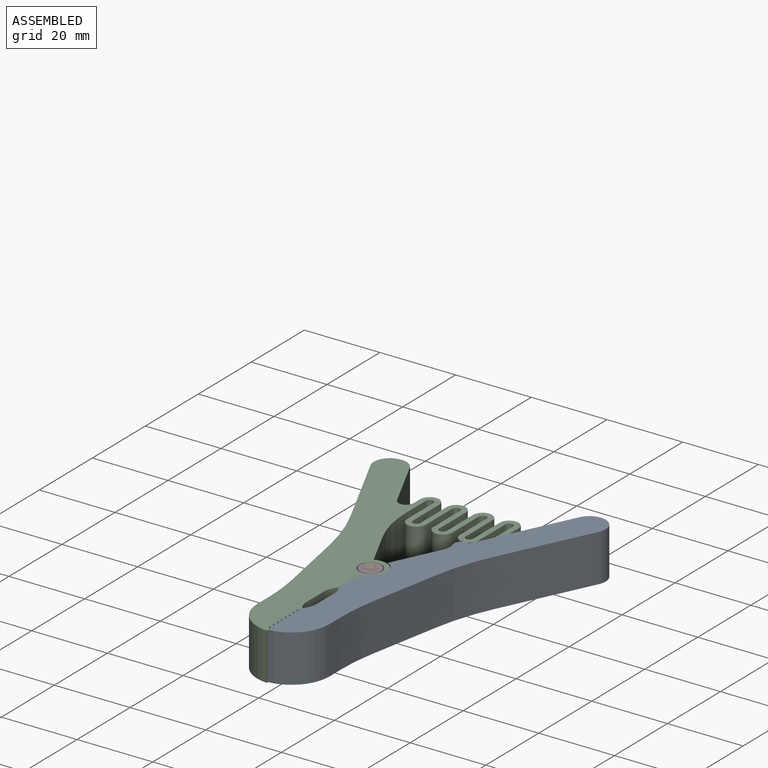
[diagram: assembled view]
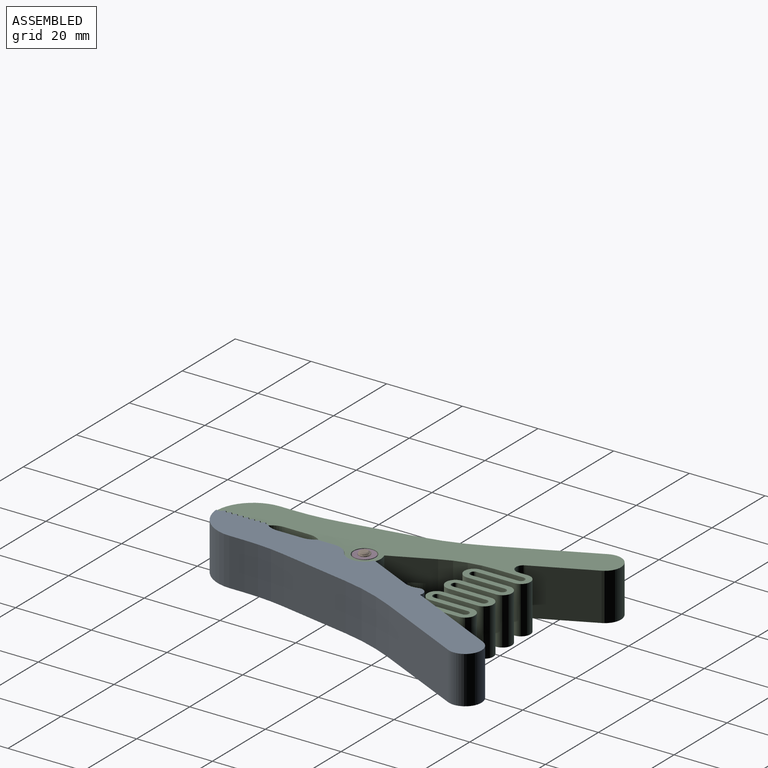
[diagram: assembled view, second angle]
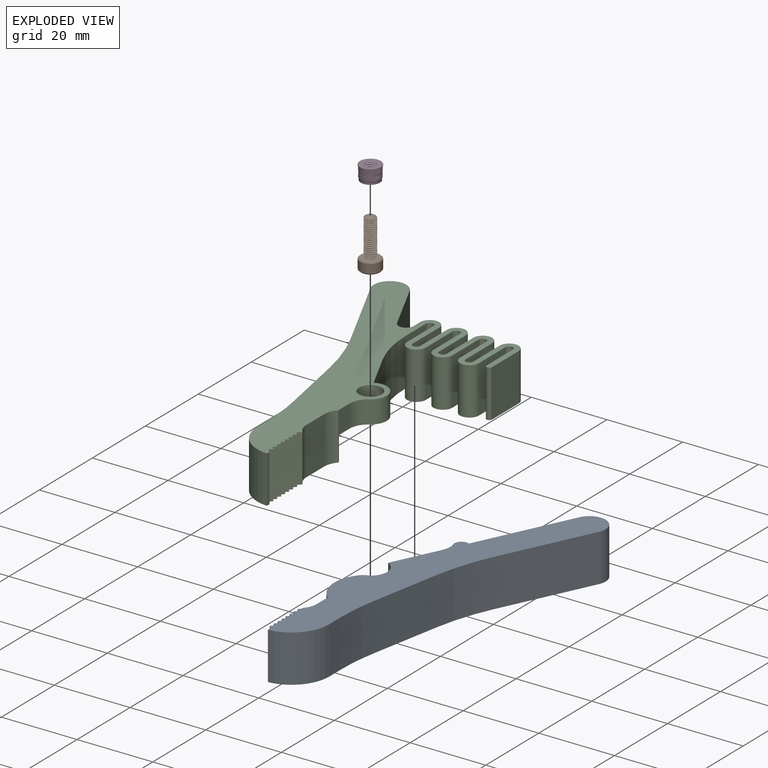
[diagram: exploded view]
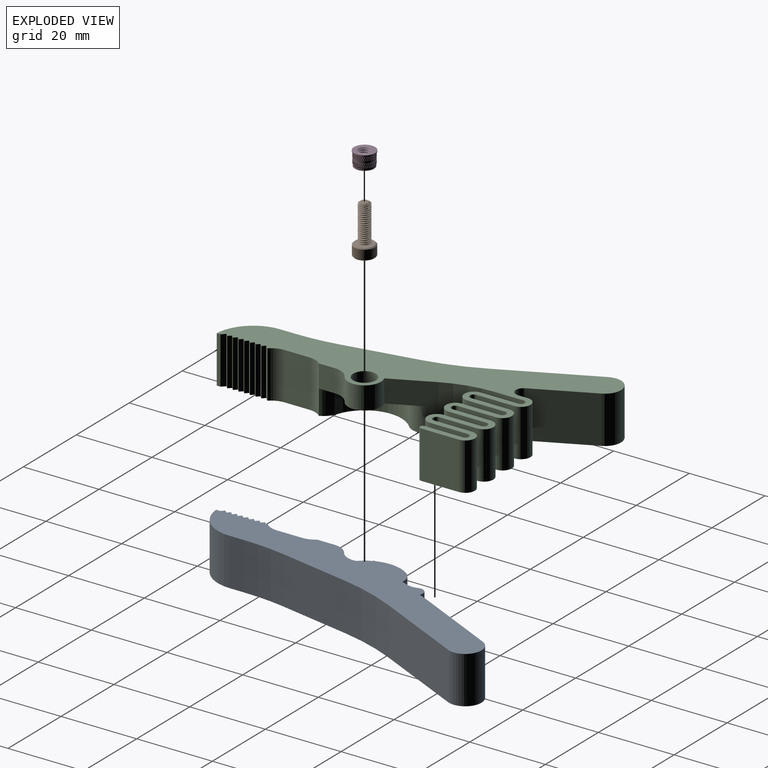
[diagram: exploded view, second angle]
ASSEMBLY  parts=4 mates=3
PART A: 48 faces, bbox 40.2x88.4x12.5 mm
  f0: plane 24.84x12.5mm, normal (-0.9,0.43,0), area 344.3mm2, adj f4,f5,f20,f46
  f1: plane 12.5x12.2mm, normal (-0.9,0.43,0), area 132mm2, adj f4,f5,f13,f14,f44,f47
  f2: cylinder r=1.75mm len=3.5mm, axis (0,0,-1), area 26.9mm2, adj f13,f17
  f3: plane 6.25x4.52mm, normal (-1,0,0), area 28.3mm2, adj f4,f13,f38,f45
  f4: plane 88.39x31.21mm, normal (0,0,1), area 834.1mm2, adj f0,f1,f3,f6,f7,f8,f9,f10
  f5: plane 88.39x40.16mm, normal (0,0,-1), area 988.1mm2, adj f0,f1,f6,f7,f8,f9,f10,f11
  f6: plane 12.5x0.48mm, normal (-1,0,0), area 6mm2, adj f4,f5,f36,f39
  f7: plane 12.5x1.07mm, normal (-1,0,0), area 13.4mm2, adj f4,f5,f15,f21
  f8: plane 12.5x0.08mm, normal (0.43,0.9,0), area 1.2mm2, adj f4,f5,f19,f20
  f9: plane 23.57x12.5mm, normal (0.9,-0.43,0), area 326.6mm2, adj f4,f5,f19,f42
  f10: plane 18.84x12.5mm, normal (0.98,-0.18,0), area 239.6mm2, adj f4,f5,f42,f43
  f11: plane 12.5x3.97mm, normal (1,0,0), area 49.7mm2, adj f4,f5,f15,f43
  f12: cylinder r=9.53mm len=14.86mm, axis (0,0,-1), area 113.7mm2, adj f5,f13,f18,f41
  f13: plane 21.67x14mm, normal (0,0,1), area 165.6mm2, adj f1,f2,f3,f12,f14,f18,f41,f44
  f14: cylinder r=5mm len=6.75mm, axis (0,0,-1), area 49.6mm2, adj f1,f5,f13,f18
  f15: cylinder r=10mm len=12.5mm, axis (0,0,-1), area 187.3mm2, adj f4,f5,f7,f11
  f16: cylinder r=2.6mm len=5.2mm, axis (0,0,-1), area 49mm2, adj f5,f40
  f17: plane 3.6x3.6mm, normal (0,0,-1), area 0.6mm2, adj f2,f40
  f18: cylinder r=4.25mm len=6.25mm, axis (0,0,1), area 36.6mm2, adj f5,f12,f13,f14
  f19: cylinder r=4.25mm len=12.5mm, axis (0,0,-1), area 83.4mm2, adj f4,f5,f8,f9
  f20: cylinder r=4.25mm len=12.5mm, axis (0,0,-1), area 83.4mm2, adj f0,f4,f5,f8
  f21: plane 12.5x0.83mm, normal (-0.71,-0.7,0), area 14.6mm2, adj f4,f5,f7,f22
  f22: plane 12.5x0.75mm, normal (-0.7,0.71,0), area 13.2mm2, adj f4,f5,f21,f24
  f23: plane 12.5x0.75mm, normal (-0.7,0.71,0), area 13.2mm2, adj f4,f5,f24,f26
  f24: plane 12.5x0.76mm, normal (-0.71,-0.7,0), area 13.3mm2, adj f4,f5,f22,f23
  f25: plane 12.5x0.75mm, normal (-0.7,0.71,0), area 13.2mm2, adj f4,f5,f26,f28
  f26: plane 12.5x0.76mm, normal (-0.71,-0.7,0), area 13.3mm2, adj f4,f5,f23,f25
  f27: plane 12.5x0.75mm, normal (-0.7,0.71,0), area 13.2mm2, adj f4,f5,f28,f30
  f28: plane 12.5x0.76mm, normal (-0.71,-0.7,0), area 13.3mm2, adj f4,f5,f25,f27
  f29: plane 12.5x0.75mm, normal (-0.7,0.71,0), area 13.2mm2, adj f4,f5,f30,f32
  f30: plane 12.5x0.76mm, normal (-0.71,-0.7,0), area 13.3mm2, adj f4,f5,f27,f29
  f31: plane 12.5x0.75mm, normal (-0.7,0.71,0), area 13.2mm2, adj f4,f5,f32,f34
  f32: plane 12.5x0.76mm, normal (-0.71,-0.7,0), area 13.3mm2, adj f4,f5,f29,f31
  f33: plane 12.5x0.75mm, normal (-0.7,0.71,0), area 13.2mm2, adj f4,f5,f34,f35
  f34: plane 12.5x0.76mm, normal (-0.71,-0.7,0), area 13.3mm2, adj f4,f5,f31,f33
  f35: plane 12.5x0.76mm, normal (-0.71,-0.7,0), area 13.3mm2, adj f4,f5,f33,f36
  f36: plane 12.5x0.57mm, normal (-0.7,0.71,0), area 10.1mm2, adj f4,f5,f6,f35
  f37: plane 12.5x6.66mm, normal (-1,0,0), area 83.3mm2, adj f4,f5,f38,f39
  f38: cylinder r=5mm len=12.5mm, axis (0,0,-1), area 42.7mm2, adj f3,f4,f5,f37,f41
  f39: cylinder r=5mm len=12.5mm, axis (0,0,-1), area 47.4mm2, adj f4,f5,f6,f37
  f40: cone r=1.8mm half-angle=45deg, axis (0,0,-1), area 15.6mm2, adj f16,f17
  f41: cylinder r=5mm len=6.25mm, axis (0,0,1), area 29.9mm2, adj f5,f12,f13,f38
  f42: cylinder r=60mm len=14.87mm, axis (0,0,-1), area 196.1mm2, adj f4,f5,f9,f10
  f43: cylinder r=60mm len=12.5mm, axis (0,0,-1), area 138.8mm2, adj f4,f5,f10,f11
  f44: cylinder r=4.42mm len=7.65mm, axis (0,0,1), area 58.1mm2, adj f1,f4,f13,f45
  f45: cylinder r=5mm len=6.25mm, axis (0,0,1), area 30.6mm2, adj f3,f4,f13,f44
  f46: cylinder r=1.86mm len=12.5mm, axis (0,0,1), area 53.9mm2, adj f0,f4,f5,f47
  f47: cylinder r=5mm len=12.5mm, axis (0,0,1), area 47.1mm2, adj f1,f4,f5,f46
PART B: 24 faces, bbox 6x6x13.6 mm
  f0: cone r=2.75mm half-angle=45deg, axis (0,0,-1), area 6.4mm2, adj f3,f11
  f1: cone r=2.48mm half-angle=45deg, axis (0,0,1), area 6.4mm2, adj f3,f10
  f2: cone r=1.44mm half-angle=45deg, axis (0,0,-1), area 0.2mm2, adj f10,f22
  f3: cylinder r=2.75mm len=5.5mm, axis (0,0,1), area 42.3mm2, adj f0,f1
  f4: cone r=0.92mm half-angle=55deg, axis (0,0,-1), area 3.7mm2, adj f5,f6,f7,f8,f9
  f5: cylinder r=1.18mm len=9.82mm, axis (0,0,-1), area 9.1mm2, adj f4,f7,f8,f11
  f6: cylinder r=1.5mm len=9.59mm, axis (0,0,1), area 11.3mm2, adj f4,f7,f8,f11
  f7: bspline ~10.2x3mm, area 61.2mm2, adj f4,f5,f6,f11
  f8: bspline ~10.01x2.95mm, area 61.2mm2, adj f4,f5,f6,f11
  f9: plane 1.84x1.84mm, normal (0,0,1), area 2.7mm2, adj f4
  f10: plane 5.42x5.42mm, normal (0,0,-1), area 12.7mm2, adj f1,f2,f12,f13,f14,f15,f16
  f11: plane 5.15x5.15mm, normal (0,0,1), area 13.6mm2, adj f0,f5,f6,f7,f8
  f12: cone r=1.44mm half-angle=45deg, axis (0,0,-1), area 0mm2, adj f10,f18
  f13: cone r=1.44mm half-angle=45deg, axis (0,0,-1), area 0mm2, adj f10,f19
  f14: cone r=1.44mm half-angle=45deg, axis (0,0,-1), area 0mm2, adj f10,f20
  f15: cone r=1.44mm half-angle=45deg, axis (0,0,-1), area 0mm2, adj f10,f21
  f16: cone r=1.44mm half-angle=45deg, axis (0,0,-1), area 0mm2, adj f10,f23
  f17: plane 2.89x2.5mm, normal (0,0,-1), area 5.4mm2, adj f18,f19,f20,f21,f22,f23
  f18: plane 2.42x1.8mm, normal (-0.5,-0.87,0), area 2.5mm2, adj f12,f17,f19,f23
  f19: plane 2.42x1.99mm, normal (-1,0,0), area 2.5mm2, adj f13,f17,f18,f20
  f20: plane 2.42x1.8mm, normal (-0.5,0.87,0), area 2.5mm2, adj f14,f17,f19,f21
  f21: plane 2.42x1.8mm, normal (0.5,0.87,0), area 2.5mm2, adj f15,f17,f20,f22
  f22: plane 2.02x1.58mm, normal (1,0,0), area 2.5mm2, adj f2,f17,f21,f23
  f23: plane 2.42x1.8mm, normal (0.5,-0.87,0), area 2.5mm2, adj f16,f17,f18,f22
PART C: 81 faces, bbox 45.2x88.4x12.5 mm
  f0: plane 12.5x10.66mm, normal (0.9,0.43,0), area 88.9mm2, adj f2,f3,f13,f15,f40,f78
  f1: cylinder r=1.75mm len=3.5mm, axis (0,0,1), area 16.5mm2, adj f13,f42
  f2: plane 88.41x45.23mm, normal (0,0,1), area 1054.4mm2, adj f0,f4,f5,f6,f7,f8,f9,f10
  f3: plane 88.41x45.23mm, normal (0,0,-1), area 914.3mm2, adj f0,f5,f6,f7,f8,f9,f10,f11
  f4: plane 6x4.19mm, normal (1,0,0), area 25.2mm2, adj f2,f13,f35,f43
  f5: plane 12.5x0.98mm, normal (1,0,0), area 12.3mm2, adj f2,f3,f14,f18
  f6: plane 15.16x12.5mm, normal (0.9,0.43,0), area 210.1mm2, adj f2,f3,f16,f79
  f7: plane 12.5x0.08mm, normal (-0.43,0.9,0), area 1.2mm2, adj f2,f3,f16,f17
  f8: plane 23.57x12.5mm, normal (-0.9,-0.43,0), area 326.6mm2, adj f2,f3,f17,f38
  f9: plane 18.84x12.5mm, normal (-0.98,-0.18,0), area 239.6mm2, adj f2,f3,f38,f39
  f10: plane 12.5x3.97mm, normal (-1,0,0), area 49.7mm2, adj f2,f3,f14,f39
  f11: plane 12.5x0.13mm, normal (1,0,0), area 1.6mm2, adj f2,f3,f33,f36
  f12: cylinder r=9.78mm len=16.42mm, axis (0,0,-1), area 131.6mm2, adj f3,f13,f15,f37
  f13: plane 24.11x14.09mm, normal (0,0,-1), area 158.7mm2, adj f0,f1,f4,f12,f15,f37,f40,f43
  f14: cylinder r=10mm len=12.5mm, axis (0,0,1), area 190.4mm2, adj f2,f3,f5,f10
  f15: cylinder r=4.25mm len=6.5mm, axis (0,0,-1), area 34.9mm2, adj f0,f3,f12,f13
  f16: cylinder r=4.25mm len=12.5mm, axis (0,0,-1), area 83.4mm2, adj f2,f3,f6,f7
  f17: cylinder r=4.25mm len=12.5mm, axis (0,0,-1), area 83.4mm2, adj f2,f3,f7,f8
  f18: plane 12.5x0.93mm, normal (0.71,0.7,0), area 16.4mm2, adj f2,f3,f5,f19
  f19: plane 12.5x0.75mm, normal (0.7,-0.71,0), area 13.2mm2, adj f2,f3,f18,f30
  f20: plane 12.5x0.76mm, normal (0.71,0.7,0), area 13.3mm2, adj f2,f3,f21,f31
  f21: plane 12.5x0.75mm, normal (0.7,-0.71,0), area 13.2mm2, adj f2,f3,f20,f28
  f22: plane 12.5x0.76mm, normal (0.71,0.7,0), area 13.3mm2, adj f2,f3,f23,f29
  f23: plane 12.5x0.75mm, normal (0.7,-0.71,0), area 13.2mm2, adj f2,f3,f22,f26
  f24: plane 12.5x0.76mm, normal (0.71,0.7,0), area 13.3mm2, adj f2,f3,f25,f27
  f25: plane 12.5x0.75mm, normal (0.7,-0.71,0), area 13.2mm2, adj f2,f3,f24,f32
  f26: plane 12.5x0.76mm, normal (0.71,0.7,0), area 13.3mm2, adj f2,f3,f23,f27
  f27: plane 12.5x0.75mm, normal (0.7,-0.71,0), area 13.2mm2, adj f2,f3,f24,f26
  f28: plane 12.5x0.76mm, normal (0.71,0.7,0), area 13.3mm2, adj f2,f3,f21,f29
  f29: plane 12.5x0.75mm, normal (0.7,-0.71,0), area 13.2mm2, adj f2,f3,f22,f28
  f30: plane 12.5x0.76mm, normal (0.71,0.7,0), area 13.3mm2, adj f2,f3,f19,f31
  f31: plane 12.5x0.75mm, normal (0.7,-0.71,0), area 13.2mm2, adj f2,f3,f20,f30
  f32: plane 12.5x0.76mm, normal (0.71,0.7,0), area 13.3mm2, adj f2,f3,f25,f33
  f33: plane 12.5x0.93mm, normal (0.7,-0.71,0), area 16.3mm2, adj f2,f3,f11,f32
  f34: plane 12.5x6.66mm, normal (1,0,0), area 83.3mm2, adj f2,f3,f35,f36
  f35: cylinder r=5mm len=12.5mm, axis (0,0,1), area 47.4mm2, adj f2,f3,f4,f34,f37
  f36: cylinder r=5mm len=12.5mm, axis (0,0,1), area 47.4mm2, adj f2,f3,f11,f34
  f37: cylinder r=5mm len=6.5mm, axis (0,0,-1), area 27.5mm2, adj f3,f12,f13,f35
  f38: cylinder r=60mm len=14.87mm, axis (0,0,-1), area 196.1mm2, adj f2,f3,f8,f9
  f39: cylinder r=60mm len=12.5mm, axis (0,0,-1), area 138.8mm2, adj f2,f3,f9,f10
  f40: cylinder r=4.32mm len=7.96mm, axis (0,0,1), area 78.3mm2, adj f0,f2,f13,f43
  f41: cylinder r=3mm len=6mm, axis (0,0,1), area 61.3mm2, adj f2,f42
  f42: cone r=1.75mm half-angle=45deg, axis (0,0,1), area 26.4mm2, adj f1,f41
  f43: cylinder r=5mm len=6mm, axis (0,0,1), area 30.1mm2, adj f2,f4,f13,f40
  f44: plane 12.5x7.6mm, normal (1,0,0), area 95mm2, adj f2,f3,f45,f78
  f45: cylinder r=1mm len=12.5mm, axis (0,0,1), area 39.3mm2, adj f2,f3,f44,f46
  f46: plane 12.5x10mm, normal (-1,0,0), area 125mm2, adj f2,f3,f45,f47
  f47: cylinder r=2.5mm len=12.5mm, axis (0,0,1), area 98.2mm2, adj f2,f3,f46,f48
  f48: plane 12.5x10mm, normal (1,0,0), area 125mm2, adj f2,f3,f47,f49
  f49: cylinder r=1mm len=12.5mm, axis (0,0,1), area 39.3mm2, adj f2,f3,f48,f50
  f50: plane 12.5x10mm, normal (-1,0,0), area 125mm2, adj f2,f3,f49,f51
  f51: cylinder r=2.5mm len=12.5mm, axis (0,0,1), area 98.2mm2, adj f2,f3,f50,f52
  f52: plane 12.5x10mm, normal (1,0,0), area 125mm2, adj f2,f3,f51,f53
  f53: cylinder r=1mm len=12.5mm, axis (0,0,1), area 39.3mm2, adj f2,f3,f52,f54
  f54: plane 12.5x10mm, normal (-1,0,0), area 125mm2, adj f2,f3,f53,f55
  f55: cylinder r=2.5mm len=12.5mm, axis (0,0,1), area 98.2mm2, adj f2,f3,f54,f56
  f56: plane 12.5x10mm, normal (1,0,0), area 125mm2, adj f2,f3,f55,f57
  f57: cylinder r=1mm len=12.5mm, axis (0,0,1), area 39.3mm2, adj f2,f3,f56,f58
  f58: plane 12.5x10mm, normal (-1,0,0), area 125mm2, adj f2,f3,f57,f80
  f59: plane 12.5x10mm, normal (1,0,0), area 125mm2, adj f2,f3,f60,f80
  f60: cylinder r=2.5mm len=12.5mm, axis (0,0,1), area 99.3mm2, adj f2,f3,f59,f61
  f61: plane 12.5x7.62mm, normal (-1,0,0), area 95.2mm2, adj f2,f3,f60,f62
  f62: plane 12.5x2.29mm, normal (-1,0,0), area 28.6mm2, adj f2,f3,f61,f63
  f63: cylinder r=1mm len=12.5mm, axis (0,0,1), area 39.3mm2, adj f2,f3,f62,f64
  f64: plane 12.5x10mm, normal (1,0,0), area 125mm2, adj f2,f3,f63,f65
  f65: cylinder r=2.5mm len=12.5mm, axis (0,0,1), area 99.3mm2, adj f2,f3,f64,f66
  f66: plane 12.5x7.62mm, normal (-1,0,0), area 95.2mm2, adj f2,f3,f65,f67
  f67: plane 12.5x2.29mm, normal (-1,0,0), area 28.6mm2, adj f2,f3,f66,f68
  f68: cylinder r=1mm len=12.5mm, axis (0,0,1), area 39.3mm2, adj f2,f3,f67,f69
  f69: plane 12.5x10mm, normal (1,0,0), area 125mm2, adj f2,f3,f68,f70
  f70: cylinder r=2.5mm len=12.5mm, axis (0,0,1), area 99.3mm2, adj f2,f3,f69,f71
  f71: plane 12.5x7.62mm, normal (-1,0,0), area 95.2mm2, adj f2,f3,f70,f72
  f72: plane 12.5x0mm, normal (0.4,0.92,0), area 0mm2, adj f2,f3,f71,f73
  f73: plane 12.5x2.29mm, normal (-1,0,0), area 28.6mm2, adj f2,f3,f72,f74
  f74: cylinder r=1mm len=12.5mm, axis (0,0,1), area 39.3mm2, adj f2,f3,f73,f75
  f75: plane 12.5x10mm, normal (1,0,0), area 125mm2, adj f2,f3,f74,f76
  f76: cylinder r=2.5mm len=12.5mm, axis (0,0,1), area 99.3mm2, adj f2,f3,f75,f77
  f77: plane 12.5x2.38mm, normal (-1,0,0), area 29.8mm2, adj f2,f3,f76,f79
  f78: cylinder r=30mm len=12.96mm, axis (0,0,1), area 167.5mm2, adj f0,f2,f3,f44
  f79: cylinder r=2mm len=12.5mm, axis (0,0,-1), area 67.4mm2, adj f2,f3,f6,f77
  f80: cylinder r=0.75mm len=12.5mm, axis (0,0,1), area 29.5mm2, adj f2,f3,f58,f59
PART D: 234 faces, bbox 5.6x4.2x5.6 mm
  f0: cylinder r=2.58mm len=5.16mm, axis (0,1,0), area 9.3mm2, adj f232,f233
  f1: cone r=2.58mm half-angle=45deg, axis (0,1,0), area 1.2mm2, adj f155,f156
  f2: cone r=2.65mm half-angle=30deg, axis (0,1,0), area 3.9mm2, adj f5,f11,f12,f13,f14,f15,f16,f17
  f3: cylinder r=2.78mm len=5.56mm, axis (0,1,0), area 4.4mm2, adj f153,f154
  f4: cylinder r=2.65mm len=1.2mm, axis (0,1,0), area 0.4mm2, adj f153,f160,f163,f233
  f5: cylinder r=2.52mm len=5.05mm, axis (0,1,0), area 8.3mm2, adj f2,f155
  f6: cone r=1.55mm half-angle=45deg, axis (0,-1,0), area 2.7mm2, adj f7,f9,f156,f157,f158,f159
  f7: cone r=1.55mm half-angle=45deg, axis (0,-1,0), area 0mm2, adj f6,f9,f159
  f8: cone r=1.18mm half-angle=45deg, axis (0,1,0), area 2.7mm2, adj f9,f154,f157,f158,f159
  f9: cylinder r=1.18mm len=3.05mm, axis (0,1,0), area 2.8mm2, adj f6,f7,f8,f157,f159
  f10: cylinder r=2.65mm len=1.2mm, axis (0,1,0), area 0.4mm2, adj f153,f162,f165,f233
  f11: cylinder r=2.65mm len=0.97mm, axis (0,1,0), area 0.3mm2, adj f2,f51,f54,f232
  f12: cylinder r=2.65mm len=0.97mm, axis (0,1,0), area 0.3mm2, adj f2,f53,f55,f232
  f13: cylinder r=2.65mm len=0.97mm, axis (0,1,0), area 0.3mm2, adj f2,f115,f117,f232
  f14: cylinder r=2.65mm len=0.97mm, axis (0,1,0), area 0.3mm2, adj f2,f48,f118,f232
  f15: cylinder r=2.65mm len=0.97mm, axis (0,1,0), area 0.3mm2, adj f2,f113,f116,f232
  f16: cylinder r=2.65mm len=0.97mm, axis (0,1,0), area 0.3mm2, adj f2,f112,f114,f232
  f17: cylinder r=2.65mm len=0.97mm, axis (0,1,0), area 0.3mm2, adj f2,f107,f109,f232
  f18: cylinder r=2.65mm len=0.97mm, axis (0,1,0), area 0.3mm2, adj f2,f110,f111,f232
  f19: cylinder r=2.65mm len=0.97mm, axis (0,1,0), area 0.3mm2, adj f2,f105,f108,f232
  f20: cylinder r=2.65mm len=0.97mm, axis (0,1,0), area 0.3mm2, adj f2,f103,f106,f232
  f21: cylinder r=2.65mm len=0.97mm, axis (0,1,0), area 0.3mm2, adj f2,f101,f104,f232
  f22: cylinder r=2.65mm len=0.97mm, axis (0,1,0), area 0.3mm2, adj f2,f97,f99,f232
  f23: cylinder r=2.65mm len=0.97mm, axis (0,1,0), area 0.3mm2, adj f2,f100,f102,f232
  f24: cylinder r=2.65mm len=0.97mm, axis (0,1,0), area 0.3mm2, adj f2,f95,f98,f232
  f25: cylinder r=2.65mm len=0.97mm, axis (0,1,0), area 0.3mm2, adj f2,f94,f96,f232
  f26: cylinder r=2.65mm len=0.97mm, axis (0,1,0), area 0.3mm2, adj f2,f92,f93,f232
  f27: cylinder r=2.65mm len=0.97mm, axis (0,1,0), area 0.3mm2, adj f2,f89,f91,f232
  f28: cylinder r=2.65mm len=0.97mm, axis (0,1,0), area 0.3mm2, adj f2,f87,f90,f232
  f29: cylinder r=2.65mm len=0.97mm, axis (0,1,0), area 0.3mm2, adj f2,f85,f88,f232
  f30: cylinder r=2.65mm len=0.97mm, axis (0,1,0), area 0.3mm2, adj f2,f83,f86,f232
  f31: cylinder r=2.65mm len=0.97mm, axis (0,1,0), area 0.3mm2, adj f2,f82,f84,f232
  f32: cylinder r=2.65mm len=0.97mm, axis (0,1,0), area 0.3mm2, adj f2,f79,f81,f232
  f33: cylinder r=2.65mm len=0.97mm, axis (0,1,0), area 0.3mm2, adj f2,f77,f80,f232
  f34: cylinder r=2.65mm len=0.97mm, axis (0,1,0), area 0.3mm2, adj f2,f76,f78,f232
  f35: cylinder r=2.65mm len=0.97mm, axis (0,1,0), area 0.3mm2, adj f2,f71,f73,f232
  f36: cylinder r=2.65mm len=0.97mm, axis (0,1,0), area 0.3mm2, adj f2,f74,f75,f232
  f37: cylinder r=2.65mm len=0.97mm, axis (0,1,0), area 0.3mm2, adj f2,f69,f72,f232
  f38: cylinder r=2.65mm len=0.97mm, axis (0,1,0), area 0.3mm2, adj f2,f67,f70,f232
  f39: cylinder r=2.65mm len=0.97mm, axis (0,1,0), area 0.3mm2, adj f2,f65,f68,f232
  f40: cylinder r=2.65mm len=0.97mm, axis (0,1,0), area 0.3mm2, adj f2,f61,f63,f232
  f41: cylinder r=2.65mm len=0.97mm, axis (0,1,0), area 0.3mm2, adj f2,f64,f66,f232
  f42: cylinder r=2.65mm len=0.97mm, axis (0,1,0), area 0.3mm2, adj f2,f59,f62,f232
  f43: cylinder r=2.65mm len=0.97mm, axis (0,1,0), area 0.3mm2, adj f2,f56,f57,f232
  f44: cylinder r=2.65mm len=0.97mm, axis (0,1,0), area 0.3mm2, adj f2,f58,f60,f232
  f45: cylinder r=2.65mm len=0.97mm, axis (0,1,0), area 0.3mm2, adj f2,f49,f52,f232
  f46: cylinder r=2.65mm len=0.97mm, axis (0,1,0), area 0.3mm2, adj f2,f47,f50,f232
  f47: bspline ~1.08x0.57mm, area 0.1mm2, adj f2,f46,f48,f232
  f48: bspline ~1.21x0.69mm, area 0.1mm2, adj f2,f14,f47,f232
  f49: bspline ~1.08x0.63mm, area 0.1mm2, adj f2,f45,f50,f232
  f50: bspline ~1.21x0.74mm, area 0.1mm2, adj f2,f46,f49,f232
  f51: bspline ~1.08x0.67mm, area 0.1mm2, adj f2,f11,f52,f232
  f52: bspline ~1.21x0.76mm, area 0.1mm2, adj f2,f45,f51,f232
  f53: bspline ~1.08x0.69mm, area 0.1mm2, adj f2,f12,f54,f232
  f54: bspline ~1.21x0.76mm, area 0.1mm2, adj f2,f11,f53,f232
  f55: bspline ~1.31x0.79mm, area 0.1mm2, adj f2,f12,f56,f232
  f56: bspline ~1.31x0.81mm, area 0.1mm2, adj f2,f43,f55,f232
  f57: bspline ~1.31x0.74mm, area 0.1mm2, adj f2,f43,f58,f232
  f58: bspline ~1.31x0.78mm, area 0.1mm2, adj f2,f44,f57,f232
  f59: bspline ~1.21x0.67mm, area 0.1mm2, adj f2,f42,f60,f232
  f60: bspline ~1.21x0.62mm, area 0.1mm2, adj f2,f44,f59,f232
  f61: bspline ~1.21x0.6mm, area 0.1mm2, adj f2,f40,f62,f232
  f62: bspline ~1.21x0.54mm, area 0.1mm2, adj f2,f42,f61,f232
  f63: bspline ~1.31x0.67mm, area 0.1mm2, adj f2,f40,f64,f232
  f64: bspline ~1.31x0.6mm, area 0.1mm2, adj f2,f41,f63,f232
  f65: bspline ~1.08x0.57mm, area 0.1mm2, adj f2,f39,f66,f232
  f66: bspline ~1.21x0.69mm, area 0.1mm2, adj f2,f41,f65,f232
  f67: bspline ~1.08x0.63mm, area 0.1mm2, adj f2,f38,f68,f232
  f68: bspline ~1.21x0.74mm, area 0.1mm2, adj f2,f39,f67,f232
  f69: bspline ~1.08x0.67mm, area 0.1mm2, adj f2,f37,f70,f232
  f70: bspline ~1.21x0.76mm, area 0.1mm2, adj f2,f38,f69,f232
  f71: bspline ~1.08x0.69mm, area 0.1mm2, adj f2,f35,f72,f232
  f72: bspline ~1.21x0.76mm, area 0.1mm2, adj f2,f37,f71,f232
  f73: bspline ~1.31x0.79mm, area 0.1mm2, adj f2,f35,f74,f232
  f74: bspline ~1.31x0.81mm, area 0.1mm2, adj f2,f36,f73,f232
  f75: bspline ~1.31x0.74mm, area 0.1mm2, adj f2,f36,f76,f232
  f76: bspline ~1.31x0.78mm, area 0.1mm2, adj f2,f34,f75,f232
  f77: bspline ~1.21x0.67mm, area 0.1mm2, adj f2,f33,f78,f232
  f78: bspline ~1.21x0.62mm, area 0.1mm2, adj f2,f34,f77,f232
  f79: bspline ~1.21x0.6mm, area 0.1mm2, adj f2,f32,f80,f232
  f80: bspline ~1.21x0.54mm, area 0.1mm2, adj f2,f33,f79,f232
  f81: bspline ~1.31x0.67mm, area 0.1mm2, adj f2,f32,f82,f232
  f82: bspline ~1.31x0.6mm, area 0.1mm2, adj f2,f31,f81,f232
  f83: bspline ~1.08x0.57mm, area 0.1mm2, adj f2,f30,f84,f232
  f84: bspline ~1.21x0.69mm, area 0.1mm2, adj f2,f31,f83,f232
  f85: bspline ~1.08x0.63mm, area 0.1mm2, adj f2,f29,f86,f232
  f86: bspline ~1.21x0.74mm, area 0.1mm2, adj f2,f30,f85,f232
  f87: bspline ~1.08x0.67mm, area 0.1mm2, adj f2,f28,f88,f232
  f88: bspline ~1.21x0.76mm, area 0.1mm2, adj f2,f29,f87,f232
  f89: bspline ~1.08x0.69mm, area 0.1mm2, adj f2,f27,f90,f232
  f90: bspline ~1.21x0.76mm, area 0.1mm2, adj f2,f28,f89,f232
  f91: bspline ~1.31x0.79mm, area 0.1mm2, adj f2,f27,f92,f232
  f92: bspline ~1.31x0.81mm, area 0.1mm2, adj f2,f26,f91,f232
  f93: bspline ~1.31x0.74mm, area 0.1mm2, adj f2,f26,f94,f232
  f94: bspline ~1.31x0.78mm, area 0.1mm2, adj f2,f25,f93,f232
  f95: bspline ~1.21x0.67mm, area 0.1mm2, adj f2,f24,f96,f232
  f96: bspline ~1.21x0.62mm, area 0.1mm2, adj f2,f25,f95,f232
  f97: bspline ~1.21x0.6mm, area 0.1mm2, adj f2,f22,f98,f232
  f98: bspline ~1.21x0.54mm, area 0.1mm2, adj f2,f24,f97,f232
  f99: bspline ~1.31x0.67mm, area 0.1mm2, adj f2,f22,f100,f232
  f100: bspline ~1.31x0.6mm, area 0.1mm2, adj f2,f23,f99,f232
  f101: bspline ~1.08x0.57mm, area 0.1mm2, adj f2,f21,f102,f232
  f102: bspline ~1.21x0.69mm, area 0.1mm2, adj f2,f23,f101,f232
  f103: bspline ~1.08x0.63mm, area 0.1mm2, adj f2,f20,f104,f232
  f104: bspline ~1.21x0.74mm, area 0.1mm2, adj f2,f21,f103,f232
  f105: bspline ~1.08x0.67mm, area 0.1mm2, adj f2,f19,f106,f232
  f106: bspline ~1.21x0.76mm, area 0.1mm2, adj f2,f20,f105,f232
  f107: bspline ~1.08x0.69mm, area 0.1mm2, adj f2,f17,f108,f232
  f108: bspline ~1.21x0.76mm, area 0.1mm2, adj f2,f19,f107,f232
  f109: bspline ~1.31x0.79mm, area 0.1mm2, adj f2,f17,f110,f232
  f110: bspline ~1.31x0.81mm, area 0.1mm2, adj f2,f18,f109,f232
  f111: bspline ~1.31x0.74mm, area 0.1mm2, adj f2,f18,f112,f232
  f112: bspline ~1.31x0.78mm, area 0.1mm2, adj f2,f16,f111,f232
  f113: bspline ~1.21x0.67mm, area 0.1mm2, adj f2,f15,f114,f232
  f114: bspline ~1.21x0.62mm, area 0.1mm2, adj f2,f16,f113,f232
  f115: bspline ~1.21x0.6mm, area 0.1mm2, adj f2,f13,f116,f232
  f116: bspline ~1.21x0.54mm, area 0.1mm2, adj f2,f15,f115,f232
  f117: bspline ~1.31x0.67mm, area 0.1mm2, adj f2,f13,f118,f232
  f118: bspline ~1.31x0.6mm, area 0.1mm2, adj f2,f14,f117,f232
  f119: cylinder r=2.65mm len=1.2mm, axis (0,1,0), area 0.4mm2, adj f153,f228,f231,f233
  f120: cylinder r=2.65mm len=1.2mm, axis (0,1,0), area 0.4mm2, adj f153,f161,f230,f233
  f121: cylinder r=2.65mm len=1.2mm, axis (0,1,0), area 0.4mm2, adj f153,f226,f229,f233
  f122: cylinder r=2.65mm len=1.2mm, axis (0,1,0), area 0.4mm2, adj f153,f224,f227,f233
  f123: cylinder r=2.65mm len=1.2mm, axis (0,1,0), area 0.4mm2, adj f153,f220,f223,f233
  f124: cylinder r=2.65mm len=1.2mm, axis (0,1,0), area 0.4mm2, adj f153,f222,f225,f233
  f125: cylinder r=2.65mm len=1.2mm, axis (0,1,0), area 0.4mm2, adj f153,f218,f221,f233
  f126: cylinder r=2.65mm len=1.2mm, axis (0,1,0), area 0.4mm2, adj f153,f216,f219,f233
  f127: cylinder r=2.65mm len=1.2mm, axis (0,1,0), area 0.4mm2, adj f153,f214,f217,f233
  f128: cylinder r=2.65mm len=1.2mm, axis (0,1,0), area 0.4mm2, adj f153,f210,f213,f233
  f129: cylinder r=2.65mm len=1.2mm, axis (0,1,0), area 0.4mm2, adj f153,f212,f215,f233
  f130: cylinder r=2.65mm len=1.2mm, axis (0,1,0), area 0.4mm2, adj f153,f208,f211,f233
  f131: cylinder r=2.65mm len=1.2mm, axis (0,1,0), area 0.4mm2, adj f153,f206,f209,f233
  f132: cylinder r=2.65mm len=1.2mm, axis (0,1,0), area 0.4mm2, adj f153,f204,f207,f233
  f133: cylinder r=2.65mm len=1.2mm, axis (0,1,0), area 0.4mm2, adj f153,f202,f205,f233
  f134: cylinder r=2.65mm len=1.2mm, axis (0,1,0), area 0.4mm2, adj f153,f200,f203,f233
  f135: cylinder r=2.65mm len=1.2mm, axis (0,1,0), area 0.4mm2, adj f153,f198,f201,f233
  f136: cylinder r=2.65mm len=1.2mm, axis (0,1,0), area 0.4mm2, adj f153,f196,f199,f233
  f137: cylinder r=2.65mm len=1.2mm, axis (0,1,0), area 0.4mm2, adj f153,f194,f197,f233
  f138: cylinder r=2.65mm len=1.2mm, axis (0,1,0), area 0.4mm2, adj f153,f192,f195,f233
  f139: cylinder r=2.65mm len=1.2mm, axis (0,1,0), area 0.4mm2, adj f153,f190,f193,f233
  f140: cylinder r=2.65mm len=1.2mm, axis (0,1,0), area 0.4mm2, adj f153,f188,f191,f233
  f141: cylinder r=2.65mm len=1.2mm, axis (0,1,0), area 0.4mm2, adj f153,f184,f187,f233
  f142: cylinder r=2.65mm len=1.2mm, axis (0,1,0), area 0.4mm2, adj f153,f186,f189,f233
  f143: cylinder r=2.65mm len=1.2mm, axis (0,1,0), area 0.4mm2, adj f153,f182,f185,f233
  f144: cylinder r=2.65mm len=1.2mm, axis (0,1,0), area 0.4mm2, adj f153,f180,f183,f233
  f145: cylinder r=2.65mm len=1.2mm, axis (0,1,0), area 0.4mm2, adj f153,f178,f181,f233
  f146: cylinder r=2.65mm len=1.2mm, axis (0,1,0), area 0.4mm2, adj f153,f174,f177,f233
  f147: cylinder r=2.65mm len=1.2mm, axis (0,1,0), area 0.4mm2, adj f153,f176,f179,f233
  f148: cylinder r=2.65mm len=1.2mm, axis (0,1,0), area 0.4mm2, adj f153,f172,f175,f233
  f149: cylinder r=2.65mm len=1.2mm, axis (0,1,0), area 0.4mm2, adj f153,f168,f171,f233
  f150: cylinder r=2.65mm len=1.2mm, axis (0,1,0), area 0.4mm2, adj f153,f170,f173,f233
  f151: cylinder r=2.65mm len=1.2mm, axis (0,1,0), area 0.4mm2, adj f153,f166,f169,f233
  f152: cylinder r=2.65mm len=1.2mm, axis (0,1,0), area 0.4mm2, adj f153,f164,f167,f233
  f153: plane 5.56x5.56mm, normal (0,-1,0), area 2.3mm2, adj f3,f4,f10,f119,f120,f121,f122,f123
  f154: plane 5.56x5.56mm, normal (0,1,0), area 16.7mm2, adj f3,f8
  f155: plane 5.16x5.16mm, normal (0,1,0), area 0.9mm2, adj f1,f5
  f156: plane 5.05x5.05mm, normal (0,-1,0), area 12.5mm2, adj f1,f6
  f157: bspline ~4.04x3.46mm, area 21.4mm2, adj f6,f8,f9,f158
  f158: cylinder r=1.5mm len=3.7mm, axis (0,-1,0), area 6mm2, adj f6,f8,f157,f159
  f159: bspline ~3.95x3.46mm, area 21.4mm2, adj f6,f7,f8,f9,f158
  f160: bspline ~1.31x0.79mm, area 0.1mm2, adj f4,f153,f161,f233
  f161: bspline ~1.31x0.81mm, area 0.1mm2, adj f120,f153,f160,f233
  f162: bspline ~1.31x0.81mm, area 0.1mm2, adj f10,f153,f163,f233
  f163: bspline ~1.31x0.81mm, area 0.1mm2, adj f4,f153,f162,f233
  f164: bspline ~1.31x0.81mm, area 0.1mm2, adj f152,f153,f165,f233
  f165: bspline ~1.31x0.78mm, area 0.1mm2, adj f10,f153,f164,f233
  f166: bspline ~1.2x0.71mm, area 0.1mm2, adj f151,f153,f167,f233
  f167: bspline ~1.31x0.73mm, area 0.1mm2, adj f152,f153,f166,f233
  f168: bspline ~1.31x0.72mm, area 0.1mm2, adj f149,f153,f169,f233
  f169: bspline ~1.31x0.66mm, area 0.1mm2, adj f151,f153,f168,f233
  f170: bspline ~1.31x0.64mm, area 0.1mm2, adj f150,f153,f171,f233
  f171: bspline ~1.31x0.58mm, area 0.1mm2, adj f149,f153,f170,f233
  f172: bspline ~1.2x0.56mm, area 0.1mm2, adj f148,f153,f173,f233
  f173: bspline ~1.31x0.67mm, area 0.1mm2, adj f150,f153,f172,f233
  f174: bspline ~1.2x0.64mm, area 0.1mm2, adj f146,f153,f175,f233
  f175: bspline ~1.31x0.74mm, area 0.1mm2, adj f148,f153,f174,f233
  f176: bspline ~1.31x0.75mm, area 0.1mm2, adj f147,f153,f177,f233
  f177: bspline ~1.31x0.79mm, area 0.1mm2, adj f146,f153,f176,f233
  f178: bspline ~1.31x0.79mm, area 0.1mm2, adj f145,f153,f179,f233
  f179: bspline ~1.31x0.81mm, area 0.1mm2, adj f147,f153,f178,f233
  f180: bspline ~1.31x0.81mm, area 0.1mm2, adj f144,f153,f181,f233
  f181: bspline ~1.31x0.81mm, area 0.1mm2, adj f145,f153,f180,f233
  f182: bspline ~1.31x0.81mm, area 0.1mm2, adj f143,f153,f183,f233
  f183: bspline ~1.31x0.78mm, area 0.1mm2, adj f144,f153,f182,f233
  f184: bspline ~1.2x0.71mm, area 0.1mm2, adj f141,f153,f185,f233
  f185: bspline ~1.31x0.73mm, area 0.1mm2, adj f143,f153,f184,f233
  f186: bspline ~1.31x0.72mm, area 0.1mm2, adj f142,f153,f187,f233
  f187: bspline ~1.31x0.66mm, area 0.1mm2, adj f141,f153,f186,f233
  f188: bspline ~1.31x0.64mm, area 0.1mm2, adj f140,f153,f189,f233
  f189: bspline ~1.31x0.58mm, area 0.1mm2, adj f142,f153,f188,f233
  f190: bspline ~1.2x0.56mm, area 0.1mm2, adj f139,f153,f191,f233
  f191: bspline ~1.31x0.67mm, area 0.1mm2, adj f140,f153,f190,f233
  f192: bspline ~1.2x0.64mm, area 0.1mm2, adj f138,f153,f193,f233
  f193: bspline ~1.31x0.74mm, area 0.1mm2, adj f139,f153,f192,f233
  f194: bspline ~1.31x0.75mm, area 0.1mm2, adj f137,f153,f195,f233
  f195: bspline ~1.31x0.79mm, area 0.1mm2, adj f138,f153,f194,f233
  f196: bspline ~1.31x0.79mm, area 0.1mm2, adj f136,f153,f197,f233
  f197: bspline ~1.31x0.81mm, area 0.1mm2, adj f137,f153,f196,f233
  f198: bspline ~1.31x0.81mm, area 0.1mm2, adj f135,f153,f199,f233
  f199: bspline ~1.31x0.81mm, area 0.1mm2, adj f136,f153,f198,f233
  f200: bspline ~1.31x0.81mm, area 0.1mm2, adj f134,f153,f201,f233
  f201: bspline ~1.31x0.78mm, area 0.1mm2, adj f135,f153,f200,f233
  f202: bspline ~1.2x0.71mm, area 0.1mm2, adj f133,f153,f203,f233
  f203: bspline ~1.31x0.73mm, area 0.1mm2, adj f134,f153,f202,f233
  f204: bspline ~1.31x0.72mm, area 0.1mm2, adj f132,f153,f205,f233
  f205: bspline ~1.31x0.66mm, area 0.1mm2, adj f133,f153,f204,f233
  f206: bspline ~1.31x0.64mm, area 0.1mm2, adj f131,f153,f207,f233
  f207: bspline ~1.31x0.58mm, area 0.1mm2, adj f132,f153,f206,f233
  f208: bspline ~1.2x0.56mm, area 0.1mm2, adj f130,f153,f209,f233
  f209: bspline ~1.31x0.67mm, area 0.1mm2, adj f131,f153,f208,f233
  f210: bspline ~1.2x0.64mm, area 0.1mm2, adj f128,f153,f211,f233
  f211: bspline ~1.31x0.74mm, area 0.1mm2, adj f130,f153,f210,f233
  f212: bspline ~1.31x0.75mm, area 0.1mm2, adj f129,f153,f213,f233
  f213: bspline ~1.31x0.79mm, area 0.1mm2, adj f128,f153,f212,f233
  f214: bspline ~1.31x0.79mm, area 0.1mm2, adj f127,f153,f215,f233
  f215: bspline ~1.31x0.81mm, area 0.1mm2, adj f129,f153,f214,f233
  f216: bspline ~1.31x0.81mm, area 0.1mm2, adj f126,f153,f217,f233
  f217: bspline ~1.31x0.81mm, area 0.1mm2, adj f127,f153,f216,f233
  f218: bspline ~1.31x0.81mm, area 0.1mm2, adj f125,f153,f219,f233
  f219: bspline ~1.31x0.78mm, area 0.1mm2, adj f126,f153,f218,f233
  f220: bspline ~1.2x0.71mm, area 0.1mm2, adj f123,f153,f221,f233
  f221: bspline ~1.31x0.73mm, area 0.1mm2, adj f125,f153,f220,f233
  f222: bspline ~1.31x0.72mm, area 0.1mm2, adj f124,f153,f223,f233
  f223: bspline ~1.31x0.66mm, area 0.1mm2, adj f123,f153,f222,f233
  f224: bspline ~1.31x0.64mm, area 0.1mm2, adj f122,f153,f225,f233
  f225: bspline ~1.31x0.58mm, area 0.1mm2, adj f124,f153,f224,f233
  f226: bspline ~1.2x0.56mm, area 0.1mm2, adj f121,f153,f227,f233
  f227: bspline ~1.31x0.67mm, area 0.1mm2, adj f122,f153,f226,f233
  f228: bspline ~1.2x0.64mm, area 0.1mm2, adj f119,f153,f229,f233
  f229: bspline ~1.31x0.74mm, area 0.1mm2, adj f121,f153,f228,f233
  f230: bspline ~1.31x0.75mm, area 0.1mm2, adj f120,f153,f231,f233
  f231: bspline ~1.31x0.79mm, area 0.1mm2, adj f119,f153,f230,f233
  f232: plane 5.31x5.31mm, normal (0,1,0), area 1.1mm2, adj f0,f11,f12,f13,f14,f15,f16,f17
  f233: plane 5.31x5.31mm, normal (0,-1,0), area 1.1mm2, adj f0,f4,f10,f119,f120,f121,f122,f123
PLACE A t=(-3.6,3.53,0.65)mm
PLACE B t=(-0.97,3.53,13.65)mm
PLACE C rot(axis=(0.86,0.32,-0.4),0deg) t=(-3.6,3.53,0.4)mm fixed
PLACE D rot(axis=(1,0,0),90deg) t=(-0.97,3.53,12.9)mm
MATE fastened D.f0 <-> C.f1  axis (0,0,1) through (-0.97,3.53,12.9)mm
MATE revolute A.f2 <-> C.f1  axis (0,0,1) through (-0.97,3.53,6.9)mm
MATE fastened B.f0 <-> A.f2  axis (0,0,-1) through (-0.97,3.53,0.65)mm
